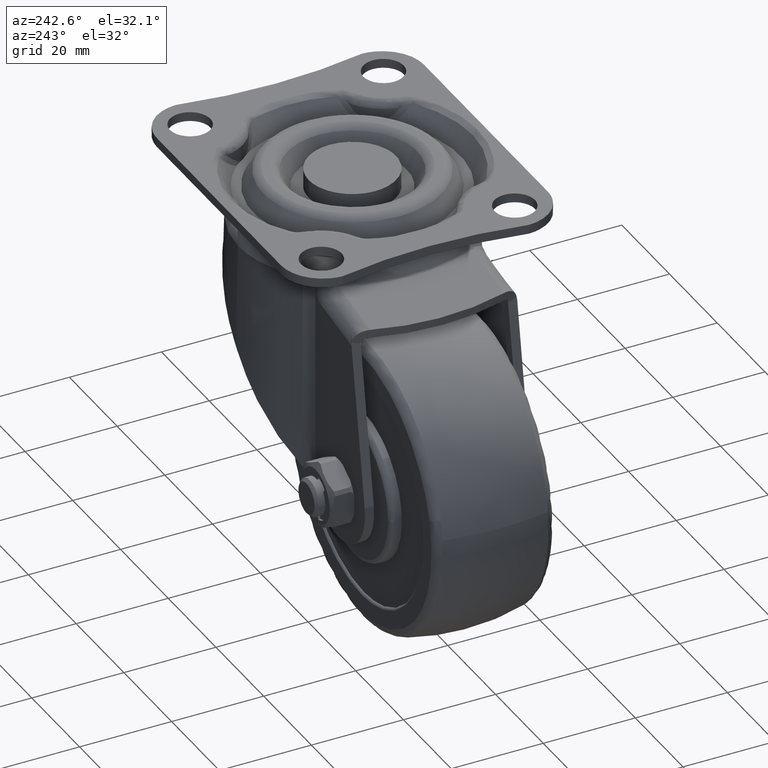
[diagram: clean part render]
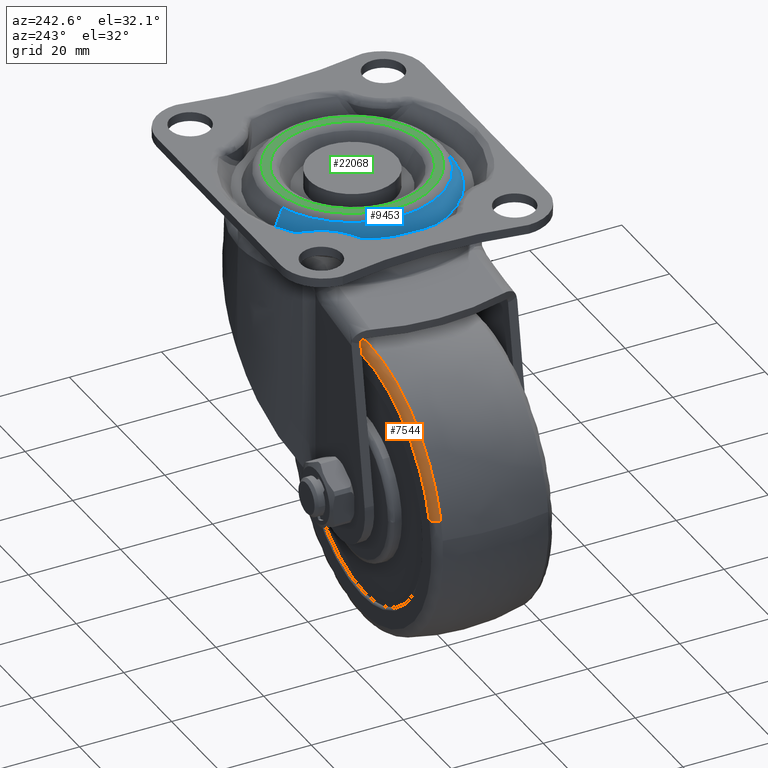
[diagram: same view with three faces highlighted in distinct colors, each labeled with its STEP entity id]
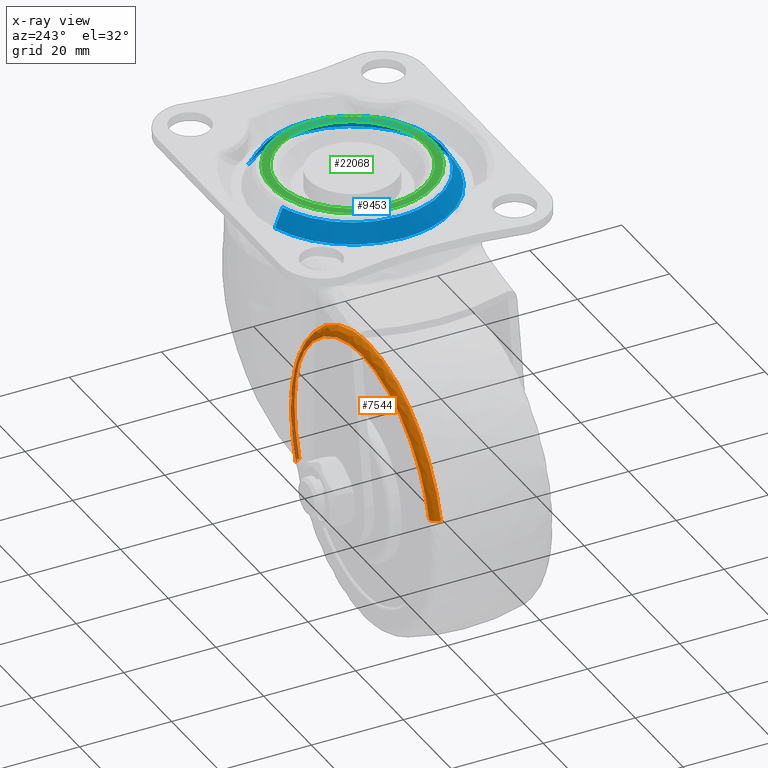
[diagram: x-ray of the same camera — body ghosted, the three highlighted faces saturated]
A machine part, auxiliary view with three faces highlighted in distinct colors.
The next image is the same camera in x-ray (body ghosted, the three faces saturated) — at least one of them is partly hidden behind the body in this view.
Their STEP definitions:

[orange] entity #7544 — the highlighted face is a freeform B-spline surface patch.
#7419=CARTESIAN_POINT('',(-1.838519856773444,12.996228383090504,-62.942845074543946));
#7420=CARTESIAN_POINT('',(-1.233609640864372,12.996228383090497,-61.369495354188295));
#7421=CARTESIAN_POINT('',(-0.814410711808970,12.996228383090505,-59.736823320455521));
#7422=CARTESIAN_POINT('',(6.422418608646562,12.996228383090502,-31.551234032264507));
#7423=CARTESIAN_POINT('',(-21.763170679544466,12.996228383090505,-24.314404711808965));
#7424=CARTESIAN_POINT('',(-49.948759967735498,12.996228383090502,-17.077575391353445));
#7425=CARTESIAN_POINT('',(-57.185589288191025,12.996228383090505,-45.263164679544460));
#7426=CARTESIAN_POINT('',(-0.167268925718750,13.106346086426027,-63.585395645763413));
#7427=CARTESIAN_POINT('',(0.474861528417826,13.106346086426024,-61.915237424134915));
#7428=CARTESIAN_POINT('',(0.919853845638624,13.106346086426027,-60.182106776140529));
#7429=CARTESIAN_POINT('',(8.601966621779148,13.106346086426026,-30.262252930501898));
#7430=CARTESIAN_POINT('',(-21.317887223859469,13.106346086426027,-22.580140154361377));
#7431=CARTESIAN_POINT('',(-51.237741069498092,13.106346086426026,-14.898027378220851));
#7432=CARTESIAN_POINT('',(-58.919853845638627,13.106346086426027,-44.817881223859466));
#7433=CARTESIAN_POINT('',(0.115953044307754,11.338294941098354,-63.694286797439617));
#7434=CARTESIAN_POINT('',(0.764391102526859,11.338294941098351,-62.007722724399819));
#7435=CARTESIAN_POINT('',(1.213754549225653,11.338294941098360,-60.257567651103059));
#7436=CARTESIAN_POINT('',(8.971328200328696,11.338294941098354,-30.043813101877390));
#7437=CARTESIAN_POINT('',(-21.242426348896963,11.338294941098360,-22.286239450774353));
#7438=CARTESIAN_POINT('',(-51.456180898122611,11.338294941098354,-14.528665799671304));
#7439=CARTESIAN_POINT('',(-59.213754549225648,11.338294941098360,-44.742420348896950));
#7447=(BOUNDED_SURFACE()B_SPLINE_SURFACE(2,2,((#7419,#7426,#7433),(#7420,#7427,#7434),(#7421,#7428,#7435),(#7422,#7429,#7436),(#7423,#7430,#7437),(#7424,#7431,#7438),(#7425,#7432,#7439)),.UNSPECIFIED.,.F.,.F.,.U.)B_SPLINE_SURFACE_WITH_KNOTS((3,2,2,3),(3,3),(0.0,4.134677693049214,55.818198145410420,107.501718597771600),(0.0,3.062144055328581),.UNSPECIFIED.)GEOMETRIC_REPRESENTATION_ITEM()RATIONAL_B_SPLINE_SURFACE(((0.875007055607748,0.652294395685180,0.877480043167074),(0.893005274871936,0.665711587561637,0.895529129875182),(0.914431722484759,0.681684432132107,0.917016133957861),(0.646600871901068,0.482023684589913,0.648428326779075),(0.914431722484759,0.681684432132107,0.917016133957861),(0.646600871901068,0.482023684589913,0.648428326779075),(0.914431722484759,0.681684432132107,0.917016133957861)))REPRESENTATION_ITEM('')SURFACE());
#7448=CARTESIAN_POINT('',(0.093170480936263,11.458332256036741,-63.685531286266610));
#7449=VERTEX_POINT('',#7448);
#7450=CARTESIAN_POINT('',(-29.0,11.458329815731391,-21.330636012916361));
#7451=VERTEX_POINT('',#7450);
#7452=CARTESIAN_POINT('',(0.093170480936263,11.458332256036744,-63.685531286266617));
#7453=CARTESIAN_POINT('',(2.169356895417397,11.458331906746663,-58.285446452260082));
#7454=CARTESIAN_POINT('',(2.169356895417397,11.458331579388179,-52.499993454166876));
#7455=CARTESIAN_POINT('',(2.169356895417394,11.458329815731389,-21.330636012916358));
#7456=CARTESIAN_POINT('',(-29.0,11.458329815731391,-21.330636012916361));
#7464=(BOUNDED_CURVE()B_SPLINE_CURVE(2,(#7452,#7453,#7454,#7455,#7456),.UNSPECIFIED.,.F.,.U.)B_SPLINE_CURVE_WITH_KNOTS((3,2,3),(0.189060939438090,0.250000000000000,0.500000000000000),.UNSPECIFIED.)CURVE()GEOMETRIC_REPRESENTATION_ITEM()RATIONAL_B_SPLINE_CURVE((0.892016633848281,0.928605449602218,1.0,0.707106781186548,1.0))REPRESENTATION_ITEM(''));
#7465=EDGE_CURVE('',#7449,#7451,#7464,.T.);
#7466=ORIENTED_EDGE('',*,*,#7465,.F.);
#7467=CARTESIAN_POINT('',(-1.723929599489993,13.0,-62.986905445075116));
#7468=VERTEX_POINT('',#7467);
#7469=CARTESIAN_POINT('',(-1.723929599489992,13.0,-62.986905445075116));
#7470=CARTESIAN_POINT('',(-0.245610126973426,12.999999995091638,-63.555279304132085));
#7471=CARTESIAN_POINT('',(0.093170480936263,11.458332256036741,-63.685531286266603));
#7479=(BOUNDED_CURVE()B_SPLINE_CURVE(2,(#7469,#7470,#7471),.UNSPECIFIED.,.F.,.U.)B_SPLINE_CURVE_WITH_KNOTS((3,3),(-1.688983787510375,-0.302597128462001),.UNSPECIFIED.)CURVE()GEOMETRIC_REPRESENTATION_ITEM()RATIONAL_B_SPLINE_CURVE((0.855702264480285,0.671711476174250,0.857950552372015))REPRESENTATION_ITEM(''));
#7480=EDGE_CURVE('',#7468,#7449,#7479,.T.);
#7481=ORIENTED_EDGE('',*,*,#7480,.F.);
#7482=CARTESIAN_POINT('',(-29.0,13.0,-23.277411500000099));
#7483=VERTEX_POINT('',#7482);
#7484=CARTESIAN_POINT('',(-1.723929599489993,12.999999999999996,-62.986905445075116));
#7485=CARTESIAN_POINT('',(0.222582499999898,13.000000000000004,-57.924099162276676));
#7486=CARTESIAN_POINT('',(0.222582499999898,13.0,-52.499994000000001));
#7487=CARTESIAN_POINT('',(0.222582499999898,13.0,-23.277411500000110));
#7488=CARTESIAN_POINT('',(-29.0,13.0,-23.277411500000099));
#7496=(BOUNDED_CURVE()B_SPLINE_CURVE(2,(#7484,#7485,#7486,#7487,#7488),.UNSPECIFIED.,.F.,.U.)B_SPLINE_CURVE_WITH_KNOTS((3,2,3),(0.189060941089798,0.250000000000000,0.500000000000000),.UNSPECIFIED.)CURVE()GEOMETRIC_REPRESENTATION_ITEM()RATIONAL_B_SPLINE_CURVE((0.892016635831706,0.928605451537314,1.0,0.707106781186547,1.0))REPRESENTATION_ITEM(''));
#7497=EDGE_CURVE('',#7468,#7483,#7496,.T.);
#7498=ORIENTED_EDGE('',*,*,#7497,.T.);
#7499=CARTESIAN_POINT('',(-57.304501339229077,13.0,-45.232633253929578));
#7500=VERTEX_POINT('',#7499);
#7501=CARTESIAN_POINT('',(-29.0,13.0,-23.277411500000099));
#7502=CARTESIAN_POINT('',(-51.667358504917402,13.000000000000002,-23.277411500000099));
#7503=CARTESIAN_POINT('',(-57.304501339229084,13.000000000000002,-45.232633253929592));
#7511=(BOUNDED_CURVE()B_SPLINE_CURVE(2,(#7501,#7502,#7503),.UNSPECIFIED.,.F.,.U.)B_SPLINE_CURVE_WITH_KNOTS((3,3),(0.500000000000000,0.707556761754815),.UNSPECIFIED.)CURVE()GEOMETRIC_REPRESENTATION_ITEM()RATIONAL_B_SPLINE_CURVE((1.0,0.756832127852542,0.917433344550965))REPRESENTATION_ITEM(''));
#7512=EDGE_CURVE('',#7483,#7500,#7511,.T.);
#7513=ORIENTED_EDGE('',*,*,#7512,.T.);
#7514=CARTESIAN_POINT('',(-59.190113184322740,11.458338880101540,-44.748490419698037));
#7515=VERTEX_POINT('',#7514);
#7516=CARTESIAN_POINT('',(-57.304501339229084,13.000000000000004,-45.232633253929578));
#7517=CARTESIAN_POINT('',(-58.838554838402857,12.999999991690162,-44.838755261058836));
#7518=CARTESIAN_POINT('',(-59.190113184322740,11.458338880101536,-44.748490419698058));
#7526=(BOUNDED_CURVE()B_SPLINE_CURVE(2,(#7516,#7517,#7518),.UNSPECIFIED.,.F.,.U.)B_SPLINE_CURVE_WITH_KNOTS((3,3),(-1.688983785115486,-0.302600879192933),.UNSPECIFIED.)CURVE()GEOMETRIC_REPRESENTATION_ITEM()RATIONAL_B_SPLINE_CURVE((0.894257161408755,0.701976924416898,0.896605696709730))REPRESENTATION_ITEM(''));
#7527=EDGE_CURVE('',#7500,#7515,#7526,.T.);
#7528=ORIENTED_EDGE('',*,*,#7527,.T.);
#7529=CARTESIAN_POINT('',(-29.0,11.458329815731391,-21.330636012916361));
#7530=CARTESIAN_POINT('',(-53.177431257900729,11.458334132601101,-21.330636537689124));
#7531=CARTESIAN_POINT('',(-59.190113184322740,11.458338880101540,-44.748490419698044));
#7539=(BOUNDED_CURVE()B_SPLINE_CURVE(2,(#7529,#7530,#7531),.UNSPECIFIED.,.F.,.U.)B_SPLINE_CURVE_WITH_KNOTS((3,3),(0.500000000000000,0.707556762833923),.UNSPECIFIED.)CURVE()GEOMETRIC_REPRESENTATION_ITEM()RATIONAL_B_SPLINE_CURVE((1.0,0.756832126588288,0.917433346220928))REPRESENTATION_ITEM(''));
#7540=EDGE_CURVE('',#7451,#7515,#7539,.T.);
#7541=ORIENTED_EDGE('',*,*,#7540,.F.);
#7542=EDGE_LOOP('',(#7466,#7481,#7498,#7513,#7528,#7541));
#7543=FACE_OUTER_BOUND('',#7542,.T.);
#7544=ADVANCED_FACE('',(#7543),#7447,.T.);

[blue] entity #9453 — the highlighted face is a freeform B-spline surface patch.
#9287=CARTESIAN_POINT('',(14.159001159629550,13.130657898417333,-0.907499974070203));
#9288=CARTESIAN_POINT('',(16.990990521588270,10.076877884480240,-0.907499974070203));
#9289=CARTESIAN_POINT('',(18.312507700177250,6.127279364824951,-0.907499974070202));
#9290=CARTESIAN_POINT('',(24.439787065002204,-12.185228335352296,-0.907499974070202));
#9291=CARTESIAN_POINT('',(6.127279364824966,-18.312507700177260,-0.907499974070202));
#9292=CARTESIAN_POINT('',(-12.185228335352281,-24.439787065002221,-0.907499974070202));
#9293=CARTESIAN_POINT('',(-18.312507700177250,-6.127279364824980,-0.907499974070202));
#9294=CARTESIAN_POINT('',(-24.439787065002204,12.185228335352265,-0.907499974070202));
#9295=CARTESIAN_POINT('',(-6.127279364824966,18.312507700177228,-0.907499974070202));
#9296=CARTESIAN_POINT('',(15.804624073199067,14.656762124574726,-4.794813525648143));
#9297=CARTESIAN_POINT('',(18.965759999416303,11.248058037443553,-4.794813525648143));
#9298=CARTESIAN_POINT('',(20.440869859102179,6.839419381406561,-4.794813525648143));
#9299=CARTESIAN_POINT('',(27.280289240508754,-13.601450477695622,-4.794813525648143));
#9300=CARTESIAN_POINT('',(6.839419381406575,-20.440869859102200,-4.794813525648143));
#9301=CARTESIAN_POINT('',(-13.601450477695607,-27.280289240508779,-4.794813525648143));
#9302=CARTESIAN_POINT('',(-20.440869859102179,-6.839419381406589,-4.794813525648143));
#9303=CARTESIAN_POINT('',(-27.280289240508754,13.601450477695591,-4.794813525648143));
#9304=CARTESIAN_POINT('',(-6.839419381406575,20.440869859102168,-4.794813525648143));
#9312=(BOUNDED_SURFACE()B_SPLINE_SURFACE(2,1,((#9287,#9296),(#9288,#9297),(#9289,#9298),(#9290,#9299),(#9291,#9300),(#9292,#9301),(#9293,#9302),(#9294,#9303),(#9295,#9304)),.UNSPECIFIED.,.F.,.F.,.U.)B_SPLINE_SURFACE_WITH_KNOTS((3,2,2,2,3),(2,2),(0.0,9.999657535657317,45.712720163004889,81.425782790352457,117.138845417700000),(0.0,4.488683050856007),.UNSPECIFIED.)GEOMETRIC_REPRESENTATION_ITEM()RATIONAL_B_SPLINE_SURFACE(((0.881905454174416,0.881905454174416),(0.917989898732233,0.917989898732233),(1.0,1.0),(0.707106781186548,0.707106781186548),(1.0,1.0),(0.707106781186548,0.707106781186548),(1.0,1.0),(0.707106781186548,0.707106781186548),(1.0,1.0)))REPRESENTATION_ITEM('')SURFACE());
#9313=CARTESIAN_POINT('',(14.198159349254070,13.166972097856910,-0.999999999402649));
#9314=VERTEX_POINT('',#9313);
#9315=CARTESIAN_POINT('',(16.604977603175222,9.961506006806271,-0.999999999092878));
#9316=VERTEX_POINT('',#9315);
#9317=CARTESIAN_POINT('',(14.198159349254066,13.166972097856911,-0.999999999402649));
#9318=CARTESIAN_POINT('',(15.568353646116883,11.689469387031201,-0.999999999259590));
#9319=CARTESIAN_POINT('',(16.604977603175215,9.961506006806271,-0.999999999092878));
#9327=(BOUNDED_CURVE()B_SPLINE_CURVE(2,(#9317,#9318,#9319),.UNSPECIFIED.,.F.,.U.)B_SPLINE_CURVE_WITH_KNOTS((3,3),(0.380683836933584,0.412160451658352),.UNSPECIFIED.)CURVE()GEOMETRIC_REPRESENTATION_ITEM()RATIONAL_B_SPLINE_CURVE((0.853856181281178,0.855533010848383,0.866495982657659))REPRESENTATION_ITEM(''));
#9328=EDGE_CURVE('',#9314,#9316,#9327,.T.);
#9329=ORIENTED_EDGE('',*,*,#9328,.T.);
#9330=CARTESIAN_POINT('',(19.363803426648150,-1.421085E-014,-1.0));
#9331=VERTEX_POINT('',#9330);
#9332=CARTESIAN_POINT('',(16.604977603175215,9.961506006806271,-0.999999999092878));
#9333=CARTESIAN_POINT('',(19.363803426648158,5.362779572452395,-1.0));
#9334=CARTESIAN_POINT('',(19.363803426648150,-1.421085E-014,-1.0));
#9342=(BOUNDED_CURVE()B_SPLINE_CURVE(2,(#9332,#9333,#9334),.UNSPECIFIED.,.F.,.U.)B_SPLINE_CURVE_WITH_KNOTS((3,3),(0.412160451658352,0.500000000000000),.UNSPECIFIED.)CURVE()GEOMETRIC_REPRESENTATION_ITEM()RATIONAL_B_SPLINE_CURVE((0.866495982657659,0.897089567788380,1.0))REPRESENTATION_ITEM(''));
#9343=EDGE_CURVE('',#9316,#9331,#9342,.T.);
#9344=ORIENTED_EDGE('',*,*,#9343,.T.);
#9345=CARTESIAN_POINT('',(11.812160798382241,-15.343719901091861,-0.999999999290192));
#9346=VERTEX_POINT('',#9345);
#9347=CARTESIAN_POINT('',(19.363803426648150,-1.421085E-014,-1.0));
#9348=CARTESIAN_POINT('',(19.363803426648147,-9.530187225560006,-1.0));
#9349=CARTESIAN_POINT('',(11.812160798382235,-15.343719901091868,-0.999999999290192));
#9357=(BOUNDED_CURVE()B_SPLINE_CURVE(2,(#9347,#9348,#9349),.UNSPECIFIED.,.F.,.U.)B_SPLINE_CURVE_WITH_KNOTS((3,3),(0.500000000000000,0.644540406166023),.UNSPECIFIED.)CURVE()GEOMETRIC_REPRESENTATION_ITEM()RATIONAL_B_SPLINE_CURVE((1.0,0.830660380757719,0.857132100277670))REPRESENTATION_ITEM(''));
#9358=EDGE_CURVE('',#9331,#9346,#9357,.T.);
#9359=ORIENTED_EDGE('',*,*,#9358,.T.);
#9360=CARTESIAN_POINT('',(-19.363803426648150,-1.421085E-014,-1.0));
#9361=VERTEX_POINT('',#9360);
#9362=CARTESIAN_POINT('',(11.812160798382232,-15.343719901091864,-0.999999999290192));
#9363=CARTESIAN_POINT('',(6.590166563801415,-19.363803426648168,-1.0));
#9364=CARTESIAN_POINT('',(0.0,-19.363803426648168,-1.0));
#9365=CARTESIAN_POINT('',(-19.363803426648147,-19.363803426648165,-1.0));
#9366=CARTESIAN_POINT('',(-19.363803426648150,-1.421085E-014,-1.0));
#9374=(BOUNDED_CURVE()B_SPLINE_CURVE(2,(#9362,#9363,#9364,#9365,#9366),.UNSPECIFIED.,.F.,.U.)B_SPLINE_CURVE_WITH_KNOTS((3,2,3),(0.644540406166023,0.750000000000000,1.0),.UNSPECIFIED.)CURVE()GEOMETRIC_REPRESENTATION_ITEM()RATIONAL_B_SPLINE_CURVE((0.857132100277670,0.876446400428829,1.0,0.707106781186547,1.0))REPRESENTATION_ITEM(''));
#9375=EDGE_CURVE('',#9346,#9361,#9374,.T.);
#9376=ORIENTED_EDGE('',*,*,#9375,.T.);
#9377=CARTESIAN_POINT('',(-6.144224992996777,18.363152844251282,-1.000000000001315));
#9378=VERTEX_POINT('',#9377);
#9379=CARTESIAN_POINT('',(-19.363803426648150,-1.421085E-014,-1.0));
#9380=CARTESIAN_POINT('',(-19.363803426648158,13.939943774547022,-1.0));
#9381=CARTESIAN_POINT('',(-6.144224992996777,18.363152844251271,-1.000000000001315));
#9389=(BOUNDED_CURVE()B_SPLINE_CURVE(2,(#9379,#9380,#9381),.UNSPECIFIED.,.F.,.U.)B_SPLINE_CURVE_WITH_KNOTS((3,3),(0.0,0.196058979253908),.UNSPECIFIED.)CURVE()GEOMETRIC_REPRESENTATION_ITEM()RATIONAL_B_SPLINE_CURVE((1.0,0.770302617956173,0.900879109998806))REPRESENTATION_ITEM(''));
#9390=EDGE_CURVE('',#9361,#9378,#9389,.T.);
#9391=ORIENTED_EDGE('',*,*,#9390,.T.);
#9392=CARTESIAN_POINT('',(-6.822050112717058,20.388958586931452,-4.700001000001087));
#9393=VERTEX_POINT('',#9392);
#9394=CARTESIAN_POINT('',(-6.144224992996777,18.363152844251282,-1.000000000001315));
#9395=CARTESIAN_POINT('',(-6.822050112717058,20.388958586931452,-4.700001000001087));
#9396=QUASI_UNIFORM_CURVE('',1,(#9394,#9395),.UNSPECIFIED.,.F.,.U.);
#9397=EDGE_CURVE('',#9378,#9393,#9396,.T.);
#9398=ORIENTED_EDGE('',*,*,#9397,.T.);
#9399=CARTESIAN_POINT('',(-21.500000000000000,-1.421085E-014,-4.700000999999900));
#9400=VERTEX_POINT('',#9399);
#9401=CARTESIAN_POINT('',(-21.500000000000000,-1.421085E-014,-4.700000999999900));
#9402=CARTESIAN_POINT('',(-21.500000000000004,15.477785254748081,-4.700000999999900));
#9403=CARTESIAN_POINT('',(-6.822050112717058,20.388958586931448,-4.700001000001087));
#9411=(BOUNDED_CURVE()B_SPLINE_CURVE(2,(#9401,#9402,#9403),.UNSPECIFIED.,.F.,.U.)B_SPLINE_CURVE_WITH_KNOTS((3,3),(0.0,0.196058979253935),.UNSPECIFIED.)CURVE()GEOMETRIC_REPRESENTATION_ITEM()RATIONAL_B_SPLINE_CURVE((1.0,0.770302617956141,0.900879109998842))REPRESENTATION_ITEM(''));
#9412=EDGE_CURVE('',#9400,#9393,#9411,.T.);
#9413=ORIENTED_EDGE('',*,*,#9412,.F.);
#9414=CARTESIAN_POINT('',(21.500000000000000,-1.421085E-014,-4.700000999999900));
#9415=VERTEX_POINT('',#9414);
#9416=CARTESIAN_POINT('',(21.500000000000000,-1.421085E-014,-4.700000999999900));
#9417=CARTESIAN_POINT('',(21.499999999999996,-21.500000000000011,-4.700000999999900));
#9418=CARTESIAN_POINT('',(0.0,-21.500000000000011,-4.700000999999900));
#9419=CARTESIAN_POINT('',(-21.499999999999996,-21.500000000000011,-4.700000999999900));
#9420=CARTESIAN_POINT('',(-21.500000000000000,-1.421085E-014,-4.700000999999900));
#9428=(BOUNDED_CURVE()B_SPLINE_CURVE(2,(#9416,#9417,#9418,#9419,#9420),.UNSPECIFIED.,.F.,.U.)B_SPLINE_CURVE_WITH_KNOTS((3,2,3),(0.500000000000000,0.750000000000000,1.0),.UNSPECIFIED.)CURVE()GEOMETRIC_REPRESENTATION_ITEM()RATIONAL_B_SPLINE_CURVE((1.0,0.707106781186548,1.0,0.707106781186548,1.0))REPRESENTATION_ITEM(''));
#9429=EDGE_CURVE('',#9415,#9400,#9428,.T.);
#9430=ORIENTED_EDGE('',*,*,#9429,.F.);
#9431=CARTESIAN_POINT('',(15.764486928962000,14.619540070282239,-4.700000999999991));
#9432=VERTEX_POINT('',#9431);
#9433=CARTESIAN_POINT('',(15.764486928962000,14.619540070282236,-4.700000999999991));
#9434=CARTESIAN_POINT('',(21.500000000000000,8.434843396888283,-4.700000999999901));
#9435=CARTESIAN_POINT('',(21.500000000000000,-1.421085E-014,-4.700000999999900));
#9443=(BOUNDED_CURVE()B_SPLINE_CURVE(2,(#9433,#9434,#9435),.UNSPECIFIED.,.F.,.U.)B_SPLINE_CURVE_WITH_KNOTS((3,3),(0.380683836933230,0.500000000000000),.UNSPECIFIED.)CURVE()GEOMETRIC_REPRESENTATION_ITEM()RATIONAL_B_SPLINE_CURVE((0.853856181281140,0.860212419771612,1.0))REPRESENTATION_ITEM(''));
#9444=EDGE_CURVE('',#9432,#9415,#9443,.T.);
#9445=ORIENTED_EDGE('',*,*,#9444,.F.);
#9446=CARTESIAN_POINT('',(14.198159349254070,13.166972097856910,-0.999999999402649));
#9447=CARTESIAN_POINT('',(15.764486928962000,14.619540070282239,-4.700000999999991));
#9448=QUASI_UNIFORM_CURVE('',1,(#9446,#9447),.UNSPECIFIED.,.F.,.U.);
#9449=EDGE_CURVE('',#9314,#9432,#9448,.T.);
#9450=ORIENTED_EDGE('',*,*,#9449,.F.);
#9451=EDGE_LOOP('',(#9329,#9344,#9359,#9376,#9391,#9398,#9413,#9430,#9445,#9450));
#9452=FACE_OUTER_BOUND('',#9451,.T.);
#9453=ADVANCED_FACE('',(#9452),#9312,.T.);

[green] entity #22068 — the highlighted face is a freeform B-spline surface patch.
#13315=CARTESIAN_POINT('',(-13.808291082554421,7.818719345337378,-3.360351E-016));
#13316=VERTEX_POINT('',#13315);
#13330=CARTESIAN_POINT('',(-15.868247380920700,-1.421085E-014,0.0));
#13331=VERTEX_POINT('',#13330);
#13332=CARTESIAN_POINT('',(-15.868247380920700,-1.421085E-014,0.0));
#13333=CARTESIAN_POINT('',(-15.868247380920696,4.180722524143163,0.0));
#13334=CARTESIAN_POINT('',(-13.808291082554417,7.818719345337378,-3.360351E-016));
#13342=(BOUNDED_CURVE()B_SPLINE_CURVE(2,(#13332,#13333,#13334),.UNSPECIFIED.,.F.,.U.)B_SPLINE_CURVE_WITH_KNOTS((3,3),(0.0,0.083983638488437),.UNSPECIFIED.)CURVE()GEOMETRIC_REPRESENTATION_ITEM()RATIONAL_B_SPLINE_CURVE((1.0,0.901607047181825,0.869321279797982))REPRESENTATION_ITEM(''));
#13343=EDGE_CURVE('',#13331,#13316,#13342,.T.);
#13345=CARTESIAN_POINT('',(15.868247380920700,-1.421085E-014,0.0));
#13346=VERTEX_POINT('',#13345);
#13347=CARTESIAN_POINT('',(15.868247380920700,-1.421085E-014,0.0));
#13348=CARTESIAN_POINT('',(15.868247380920701,-15.868247380920717,0.0));
#13349=CARTESIAN_POINT('',(0.0,-15.868247380920710,0.0));
#13350=CARTESIAN_POINT('',(-15.868247380920701,-15.868247380920717,0.0));
#13351=CARTESIAN_POINT('',(-15.868247380920700,-1.421085E-014,0.0));
#13359=(BOUNDED_CURVE()B_SPLINE_CURVE(2,(#13347,#13348,#13349,#13350,#13351),.UNSPECIFIED.,.F.,.U.)B_SPLINE_CURVE_WITH_KNOTS((3,2,3),(0.500000000000000,0.750000000000000,1.0),.UNSPECIFIED.)CURVE()GEOMETRIC_REPRESENTATION_ITEM()RATIONAL_B_SPLINE_CURVE((1.0,0.707106781186547,1.0,0.707106781186547,1.0))REPRESENTATION_ITEM(''));
#13360=EDGE_CURVE('',#13346,#13331,#13359,.T.);
#13362=CARTESIAN_POINT('',(7.818719345337392,13.808291082554410,-3.360351E-016));
#13363=VERTEX_POINT('',#13362);
#13364=CARTESIAN_POINT('',(7.818719345337392,13.808291082554408,-3.360351E-016));
#13365=CARTESIAN_POINT('',(15.868247380920707,9.250377280039830,0.0));
#13366=CARTESIAN_POINT('',(15.868247380920700,-1.421085E-014,0.0));
#13374=(BOUNDED_CURVE()B_SPLINE_CURVE(2,(#13364,#13365,#13366),.UNSPECIFIED.,.F.,.U.)B_SPLINE_CURVE_WITH_KNOTS((3,3),(0.333983638488437,0.500000000000000),.UNSPECIFIED.)CURVE()GEOMETRIC_REPRESENTATION_ITEM()RATIONAL_B_SPLINE_CURVE((0.869321279797982,0.805499734004722,1.0))REPRESENTATION_ITEM(''));
#13375=EDGE_CURVE('',#13363,#13346,#13374,.T.);
#13412=CARTESIAN_POINT('',(-13.808291082554421,7.818719345337378,-3.360351E-016));
#13413=CARTESIAN_POINT('',(-9.250377280039844,15.868247380920682,0.0));
#13414=CARTESIAN_POINT('',(0.0,15.868247380920691,0.0));
#13415=CARTESIAN_POINT('',(4.180722524143188,15.868247380920689,0.0));
#13416=CARTESIAN_POINT('',(7.818719345337392,13.808291082554401,-3.360351E-016));
#13424=(BOUNDED_CURVE()B_SPLINE_CURVE(2,(#13412,#13413,#13414,#13415,#13416),.UNSPECIFIED.,.F.,.U.)B_SPLINE_CURVE_WITH_KNOTS((3,2,3),(0.083983638488437,0.250000000000000,0.333983638488437),.UNSPECIFIED.)CURVE()GEOMETRIC_REPRESENTATION_ITEM()RATIONAL_B_SPLINE_CURVE((0.869321279797982,0.805499734004722,1.0,0.901607047181825,0.869321279797982))REPRESENTATION_ITEM(''));
#13425=EDGE_CURVE('',#13316,#13363,#13424,.T.);
#13466=CARTESIAN_POINT('',(10.755588279944670,-13.971256974383349,-3.511757E-016));
#13467=VERTEX_POINT('',#13466);
#13468=CARTESIAN_POINT('',(-17.631752619079300,-1.421085E-014,0.0));
#13469=VERTEX_POINT('',#13468);
#13470=CARTESIAN_POINT('',(10.755588279944671,-13.971256974383351,-3.511757E-016));
#13471=CARTESIAN_POINT('',(6.000690257669167,-17.631752619079311,0.0));
#13472=CARTESIAN_POINT('',(0.0,-17.631752619079311,0.0));
#13473=CARTESIAN_POINT('',(-17.631752619079297,-17.631752619079307,0.0));
#13474=CARTESIAN_POINT('',(-17.631752619079300,-1.421085E-014,0.0));
#13482=(BOUNDED_CURVE()B_SPLINE_CURVE(2,(#13470,#13471,#13472,#13473,#13474),.UNSPECIFIED.,.F.,.U.)B_SPLINE_CURVE_WITH_KNOTS((3,2,3),(0.644540406164246,0.750000000000000,1.0),.UNSPECIFIED.)CURVE()GEOMETRIC_REPRESENTATION_ITEM()RATIONAL_B_SPLINE_CURVE((0.857132100277019,0.876446400426747,1.0,0.707106781186548,1.0))REPRESENTATION_ITEM(''));
#13483=EDGE_CURVE('',#13467,#13469,#13482,.T.);
#13485=CARTESIAN_POINT('',(15.119697873166061,9.070470601522434,-3.665838E-016));
#13486=VERTEX_POINT('',#13485);
#13487=CARTESIAN_POINT('',(-17.631752619079300,-1.421085E-014,0.0));
#13488=CARTESIAN_POINT('',(-17.631752619079297,17.631752619079279,0.0));
#13489=CARTESIAN_POINT('',(0.0,17.631752619079290,0.0));
#13490=CARTESIAN_POINT('',(9.983692005216044,17.631752619079283,0.0));
#13491=CARTESIAN_POINT('',(15.119697873166057,9.070470601522434,-3.665838E-016));
#13499=(BOUNDED_CURVE()B_SPLINE_CURVE(2,(#13487,#13488,#13489,#13490,#13491),.UNSPECIFIED.,.F.,.U.)B_SPLINE_CURVE_WITH_KNOTS((3,2,3),(0.0,0.250000000000000,0.412160451654853),.UNSPECIFIED.)CURVE()GEOMETRIC_REPRESENTATION_ITEM()RATIONAL_B_SPLINE_CURVE((1.0,0.707106781186548,1.0,0.810017213402267,0.866495982655222))REPRESENTATION_ITEM(''));
#13500=EDGE_CURVE('',#13469,#13486,#13499,.T.);
#13552=CARTESIAN_POINT('',(17.631752619079300,-1.421085E-014,0.0));
#13553=VERTEX_POINT('',#13552);
#13554=CARTESIAN_POINT('',(17.631752619079300,-1.421085E-014,0.0));
#13555=CARTESIAN_POINT('',(17.631752619079300,-8.677732358140556,0.0));
#13556=CARTESIAN_POINT('',(10.755588279944671,-13.971256974383348,-3.511757E-016));
#13564=(BOUNDED_CURVE()B_SPLINE_CURVE(2,(#13554,#13555,#13556),.UNSPECIFIED.,.F.,.U.)B_SPLINE_CURVE_WITH_KNOTS((3,3),(0.500000000000000,0.644540406164246),.UNSPECIFIED.)CURVE()GEOMETRIC_REPRESENTATION_ITEM()RATIONAL_B_SPLINE_CURVE((1.0,0.830660380759800,0.857132100277019))REPRESENTATION_ITEM(''));
#13565=EDGE_CURVE('',#13553,#13467,#13564,.T.);
#13571=CARTESIAN_POINT('',(15.119697873166057,9.070470601522434,-3.665838E-016));
#13572=CARTESIAN_POINT('',(17.631752619079297,4.883090408065486,0.0));
#13573=CARTESIAN_POINT('',(17.631752619079300,-1.421085E-014,0.0));
#13581=(BOUNDED_CURVE()B_SPLINE_CURVE(2,(#13571,#13572,#13573),.UNSPECIFIED.,.F.,.U.)B_SPLINE_CURVE_WITH_KNOTS((3,3),(0.412160451654853,0.500000000000000),.UNSPECIFIED.)CURVE()GEOMETRIC_REPRESENTATION_ITEM()RATIONAL_B_SPLINE_CURVE((0.866495982655222,0.897089567784280,1.0))REPRESENTATION_ITEM(''));
#13582=EDGE_CURVE('',#13486,#13553,#13581,.T.);
#22051=CARTESIAN_POINT('',(-19.393163849334680,19.392167556640111,0.0));
#22052=CARTESIAN_POINT('',(19.393162903493771,19.392167556640111,0.0));
#22053=CARTESIAN_POINT('',(-19.393163849334680,-19.391792220461781,0.0));
#22054=CARTESIAN_POINT('',(19.393162903493771,-19.391792220461781,0.0));
#22055=B_SPLINE_SURFACE_WITH_KNOTS('',1,1,((#22051,#22053),(#22052,#22054)),.UNSPECIFIED.,.F.,.F.,.U.,(2,2),(2,2),(0.0,38.786326752828451),(0.0,38.783959777101892),.UNSPECIFIED.);
#22056=ORIENTED_EDGE('',*,*,#13483,.F.);
#22057=ORIENTED_EDGE('',*,*,#13565,.F.);
#22058=ORIENTED_EDGE('',*,*,#13582,.F.);
#22059=ORIENTED_EDGE('',*,*,#13500,.F.);
#22060=EDGE_LOOP('',(#22056,#22057,#22058,#22059));
#22061=FACE_OUTER_BOUND('',#22060,.T.);
#22062=ORIENTED_EDGE('',*,*,#13360,.T.);
#22063=ORIENTED_EDGE('',*,*,#13343,.T.);
#22064=ORIENTED_EDGE('',*,*,#13425,.T.);
#22065=ORIENTED_EDGE('',*,*,#13375,.T.);
#22066=EDGE_LOOP('',(#22062,#22063,#22064,#22065));
#22067=FACE_BOUND('',#22066,.T.);
#22068=ADVANCED_FACE('',(#22061,#22067),#22055,.F.);